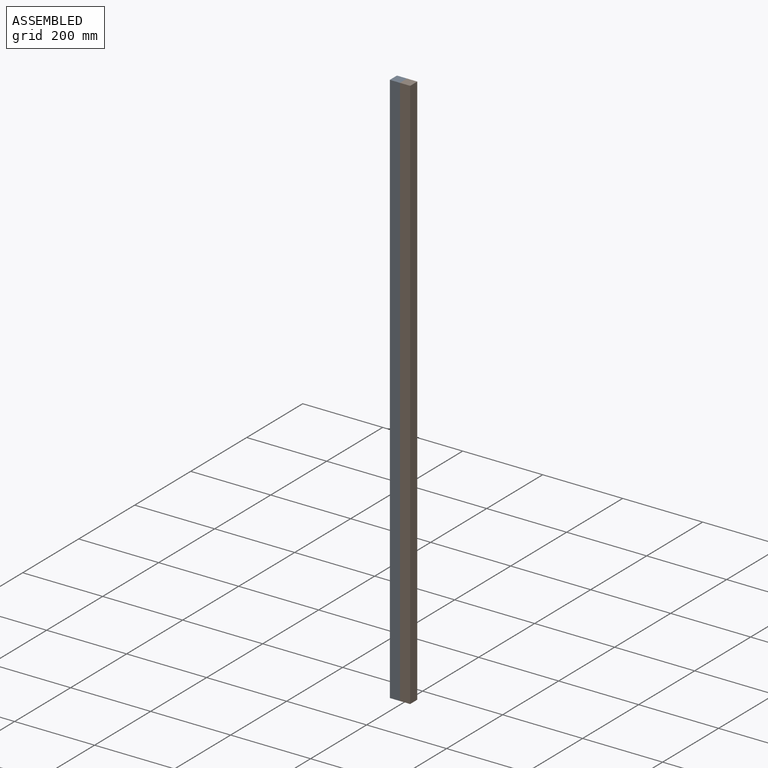
[diagram: assembled view]
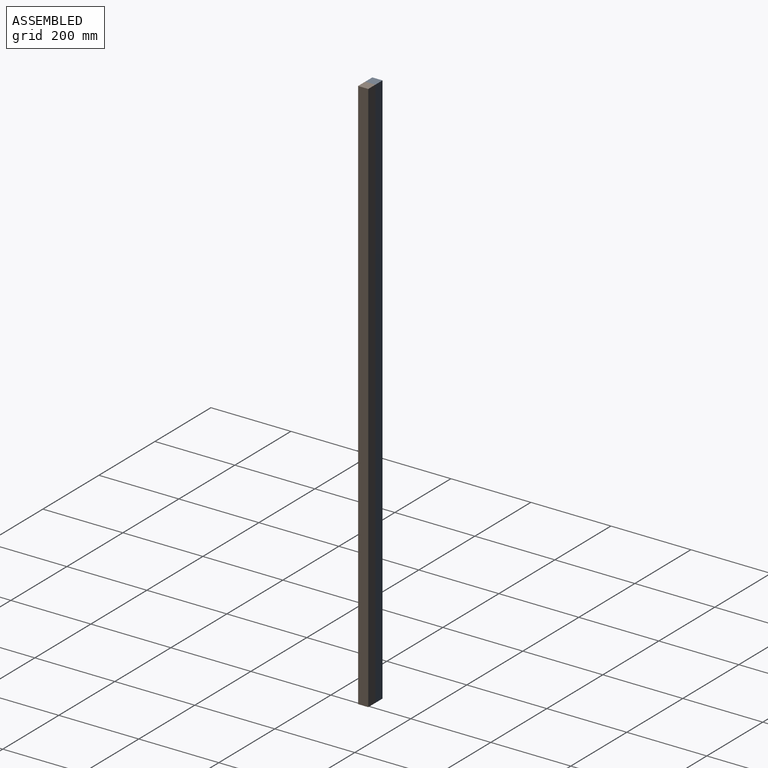
[diagram: assembled view, second angle]
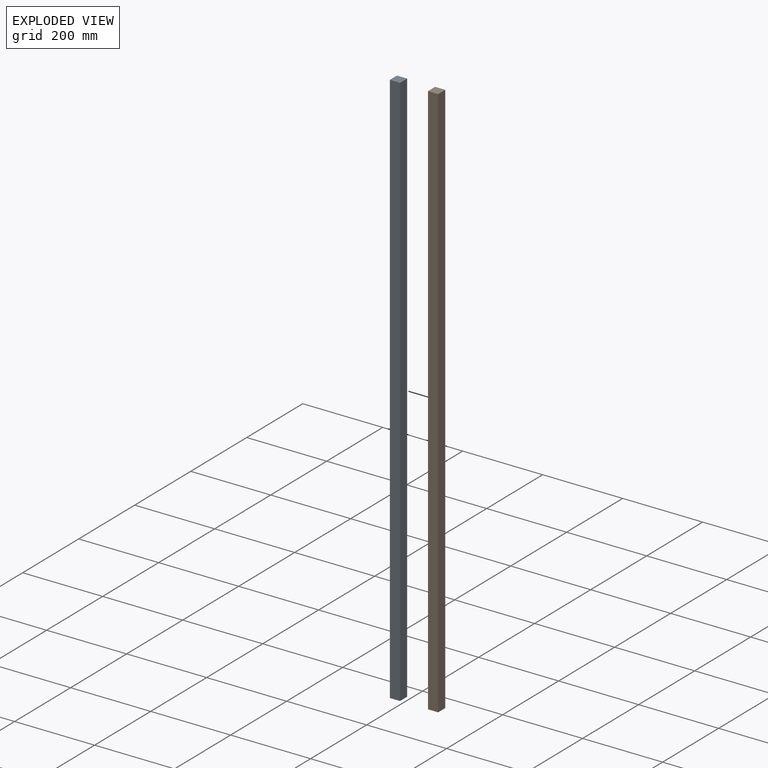
[diagram: exploded view]
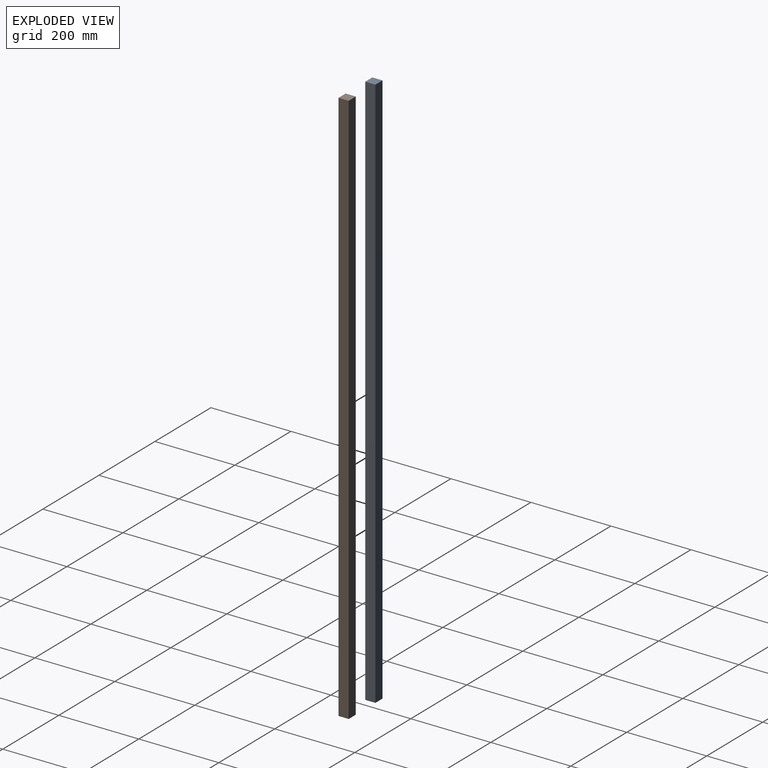
[diagram: exploded view, second angle]
ASSEMBLY  parts=2 mates=2
PART A: 6 faces, bbox 25.4x25.4x1397 mm
  f0: plane 1397x25.4mm, normal (-1,0,0), area 35483.8mm2, adj f1,f3,f4,f5
  f1: plane 25.4x25.4mm, normal (0,0,-1), area 645.2mm2, adj f0,f2,f4,f5
  f2: plane 1397x25.4mm, normal (1,0,0), area 35483.8mm2, adj f1,f3,f4,f5
  f3: plane 25.4x25.4mm, normal (0,0,1), area 645.2mm2, adj f0,f2,f4,f5
  f4: plane 1397x25.4mm, normal (0,-1,0), area 35483.8mm2, adj f0,f1,f2,f3
  f5: plane 1397x25.4mm, normal (0,1,0), area 35483.8mm2, adj f0,f1,f2,f3
PART B: same geometry as A
PLACE A t=(190.24,122.48,-68.19)mm
PLACE B t=(215.64,122.48,-68.19)mm
MATE slider A.f2 <-> B.f0  axis (1,0,0) through (215.64,109.78,630.31)mm
MATE planar B.f0 <-> A.f2  axis (-1,0,0) through (215.64,109.78,630.31)mm
